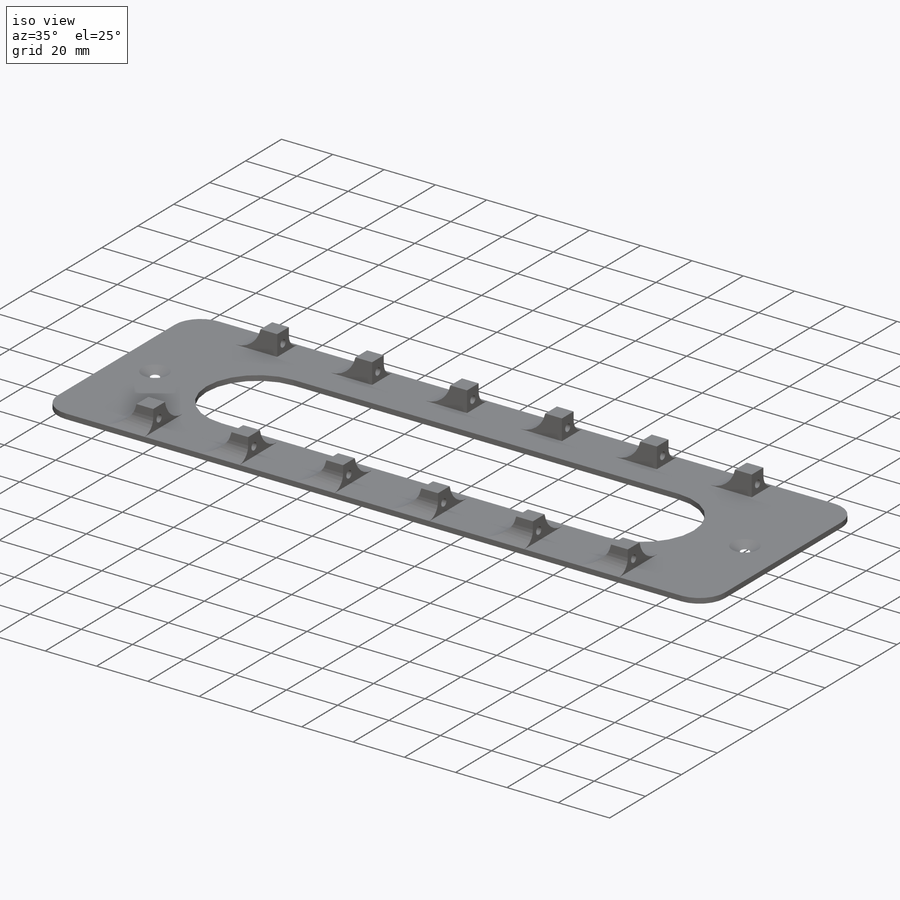
[diagram: iso view]
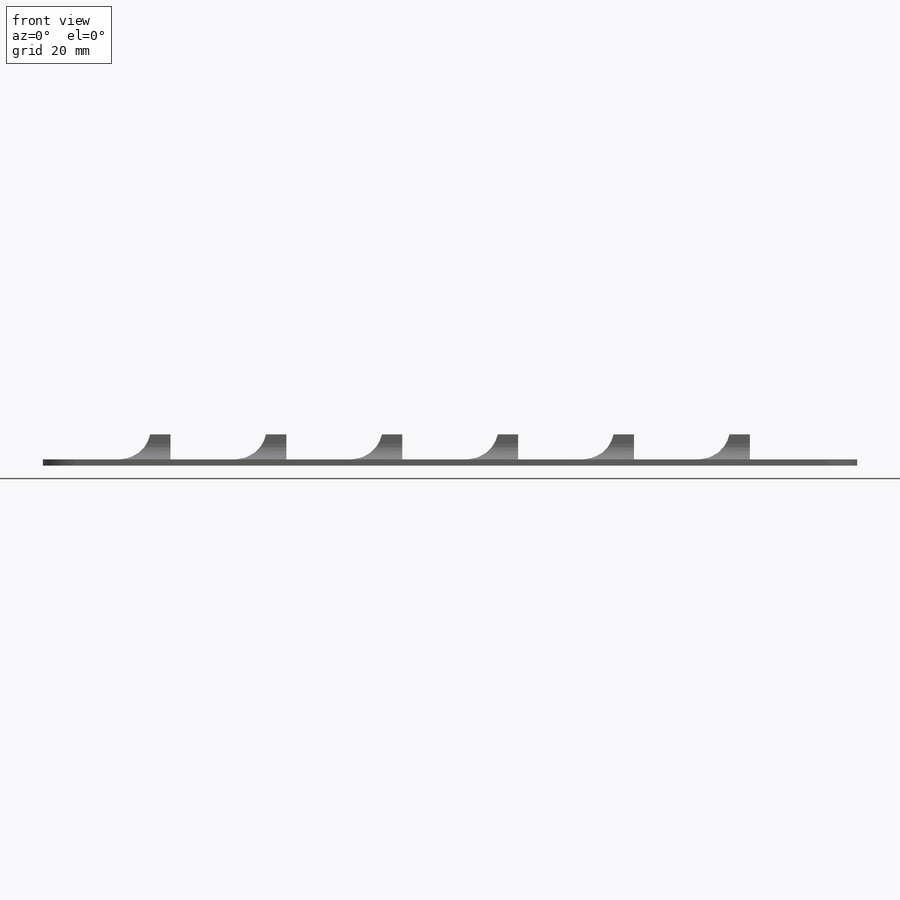
[diagram: front view]
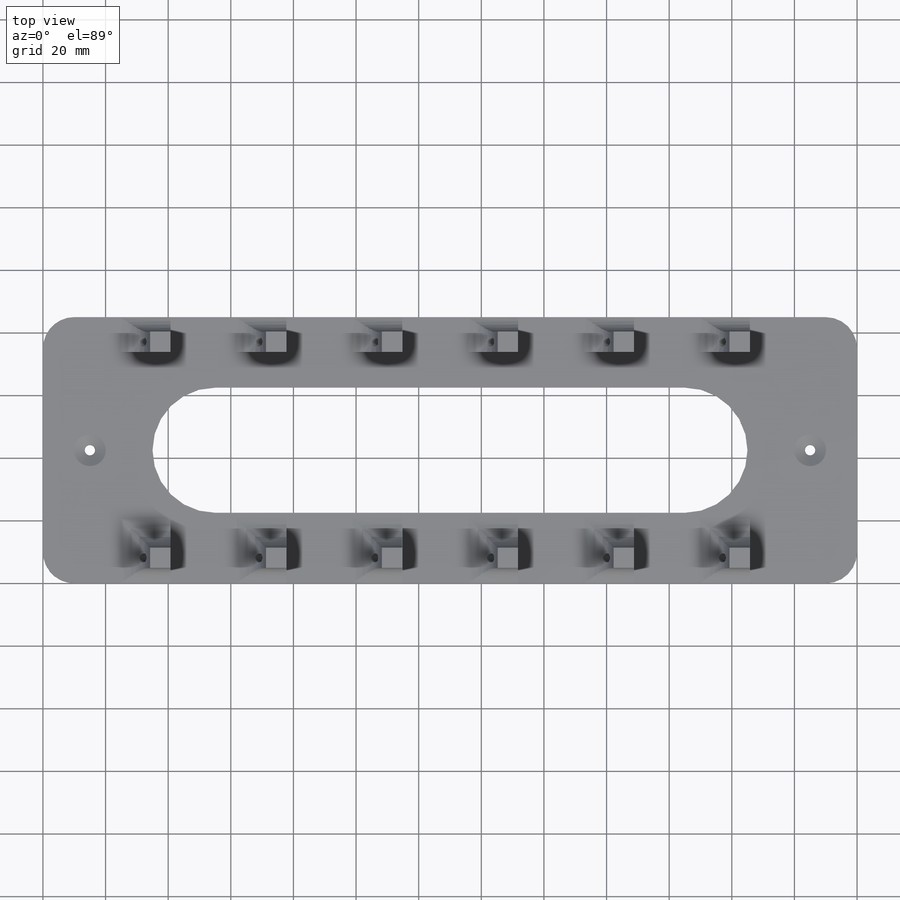
[diagram: top view]
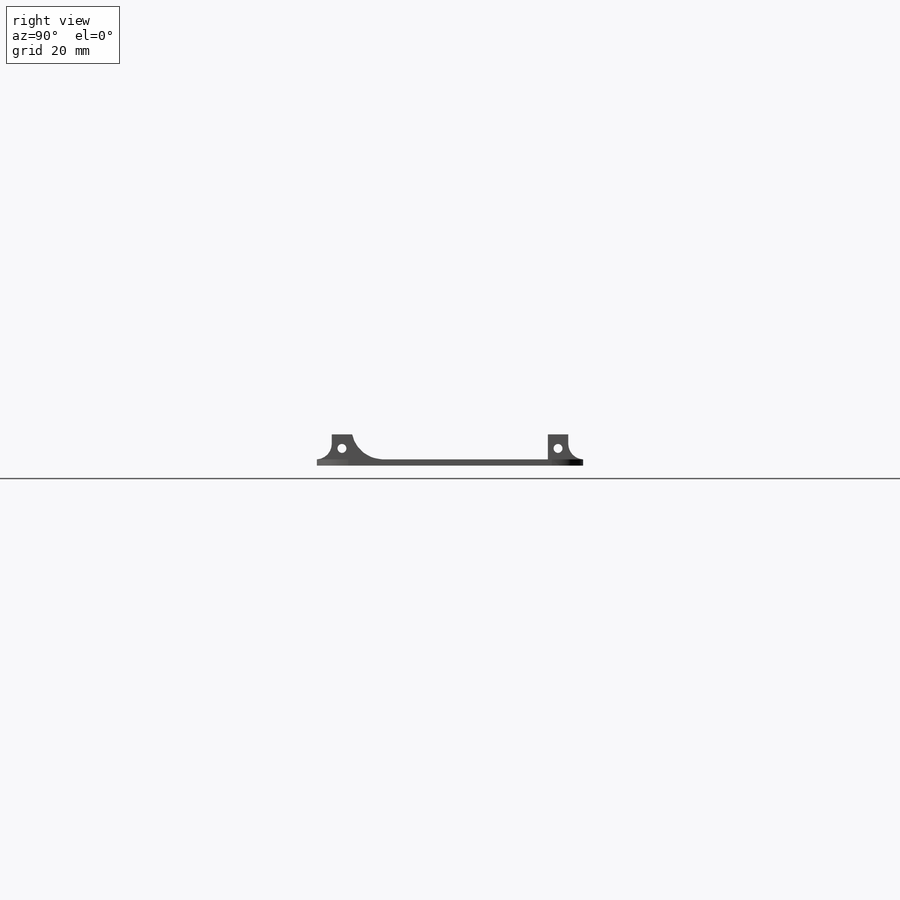
[diagram: right view]
SOLIDWORKS PART (.sldprt)
format: sldprt  version: not decoded by parser v0  size: 465,920 bytes
history: native  units: mm
features: plane x4, sketch x4, fillet x3, extrude x2, cut_extrude x2, material x1, mirror x1, chamfer x1 (+9 scaffold rows collapsed)
feature tree (27):
  scaffold x9  (default folders/planes/origin — collapsed)
  material  "Material <sin especificar>"
  plane  "Alzado"
  plane  "Planta"
  plane  "Vista lateral"
  sketch  "Croquis1"  dims[D3=10.0mm D1=260.0mm D2=85.0mm]
  extrude  "Saliente-Extruir1"  Depth=2mm
  sketch  "Croquis2"  dims[D1=69.0mm D2=6.5mm D3=34.25mm]
  extrude  "Saliente-Extruir2"  Depth=8mm
  sketch  "Croquis14"  dims[D2=2.85mm D1=3.5mm]
  sketch  "Croquis23"  dims[c1.D1=40.0mm c1.D2=40.0mm c1.D7=3.2mm c1.D8=3.2mm c2.D1=40.0mm c2.D3=50.0mm c2.D4=50.0mm c2.D5=15.0mm c2.D6=15.0mm c2.D2=40.0mm]
  cut_extrude  "Cortar-Extruir1"  Depth=10mm
  plane  "Plano1"
  mirror  "Simetría1"
  fillet  "Redondeo1"  Radius=5mm
  fillet  "Redondeo2"  Radius=10mm
  fillet  "Redondeo3"  Radius=10mm
  cut_extrude  "Cortar-Extruir2"  Depth=10mm
  chamfer  "Chaflán1"  Distance=3.5mm Angle=30deg
decode coverage: 12 of 13 modeling features carry decoded parameters
note: suppression state not decoded; provenance and decode notes live in map.json
